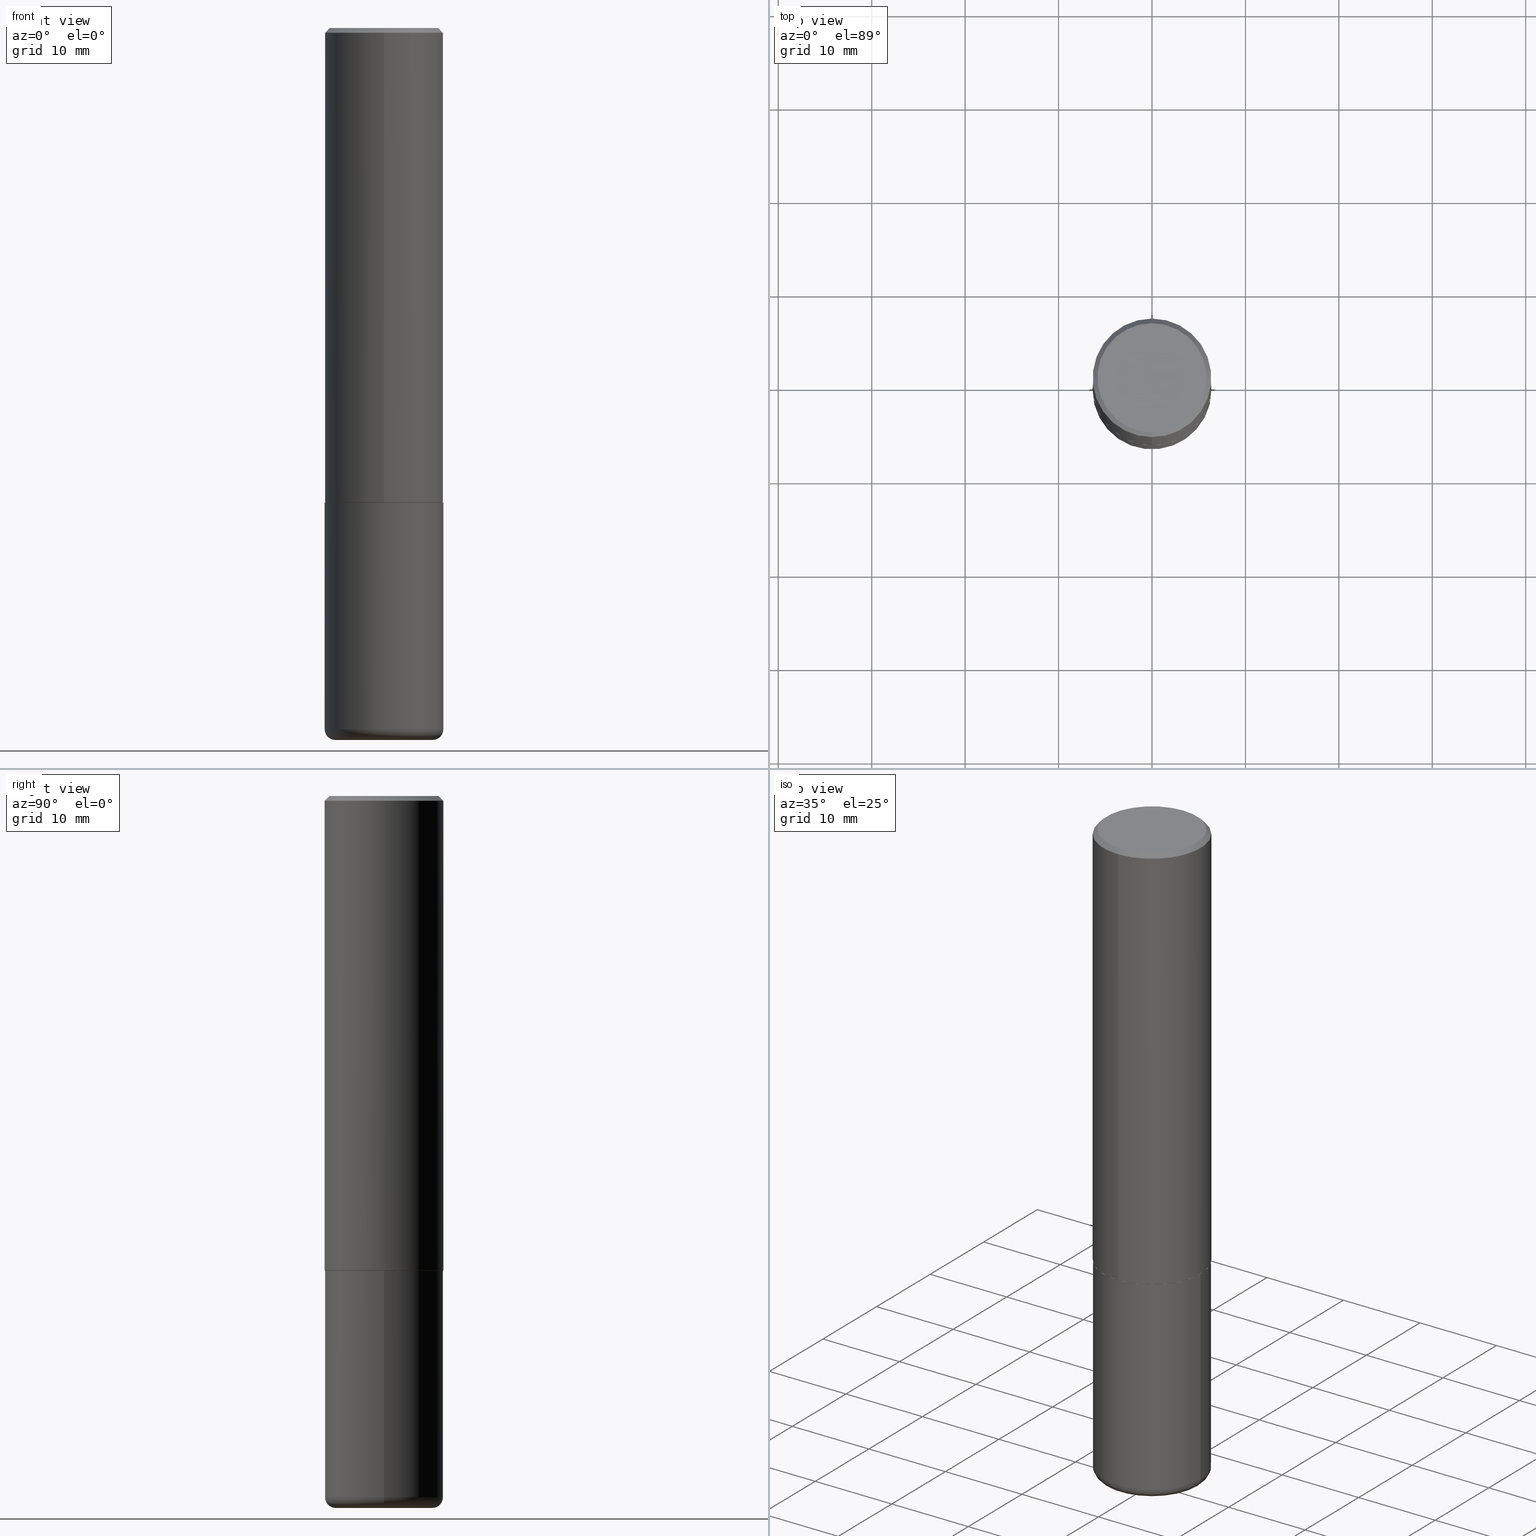
[diagram: canonical four-view strip — front | top / right | iso, engineering-drawing reading convention]
A machine part, canonical four-view strip (front | top / right | iso — engineering-drawing reading convention). The complete STEP part file that produces these views, byte-faithful:
ISO-10303-21;
HEADER;
FILE_DESCRIPTION (( 'STEP AP203' ),
    '1' );
FILE_NAME ('38177.STEP',
    '2024-03-02T17:04:39',
    ( '' ),
    ( '' ),
    'SwSTEP 2.0',
    'SolidWorks 2023',
    '' );
FILE_SCHEMA (( 'CONFIG_CONTROL_DESIGN' ));
ENDSEC;

DATA;
#1 = CARTESIAN_POINT ( 'NONE',  ( 4.890937612370273754E-29, -6.982962677686291954E-15, -2.000000000000000444 ) ) ;
#2 = AXIS2_PLACEMENT_3D ( 'NONE', #112, #409, #234 ) ;
#3 = CALENDAR_DATE ( 2024, 2, 3 ) ;
#4 = ORIENTED_EDGE ( 'NONE', *, *, #392, .T. ) ;
#5 = DATE_AND_TIME ( #223, #238 ) ;
#6 = LINE ( 'NONE', #391, #178 ) ;
#7 = PERSON_AND_ORGANIZATION ( #211, #130 ) ;
#8 = VERTEX_POINT ( 'NONE', #14 ) ;
#9 = CONICAL_SURFACE ( 'NONE', #362, 0.2500000000000000000, 0.7853981633974479459 ) ;
#10 = ADVANCED_FACE ( 'NONE', ( #172 ), #24, .T. ) ;
#11 = CALENDAR_DATE ( 2024, 2, 3 ) ;
#12 = DIRECTION ( 'NONE',  ( -4.937700262164378437E-15, -0.7071067811865208164, 0.7071067811865739960 ) ) ;
#13 = CALENDAR_DATE ( 2024, 2, 3 ) ;
#14 = CARTESIAN_POINT ( 'NONE',  ( 1.675911042644703774E-15, 0.2299999999999998990, -7.518185580527182730E-16 ) ) ;
#15 = CARTESIAN_POINT ( 'NONE',  ( 0.2500000000000000000, -8.728703347107858632E-15, -2.000000000000000444 ) ) ;
#16 = CC_DESIGN_PERSON_AND_ORGANIZATION_ASSIGNMENT ( #402, #254, ( #326 ) ) ;
#17 = AXIS2_PLACEMENT_3D ( 'NONE', #167, #98, #163 ) ;
#18 = FACE_OUTER_BOUND ( 'NONE', #244, .T. ) ;
#19 = ORIENTED_EDGE ( 'NONE', *, *, #418, .F. ) ;
#20 = DIRECTION ( 'NONE',  ( -6.982962677686265922E-15, -1.000000000000000000, 3.489872788065001841E-15 ) ) ;
#21 = CARTESIAN_POINT ( 'NONE',  ( 4.890937612370273754E-29, -6.982962677686291954E-15, -2.000000000000000444 ) ) ;
#22 = EDGE_LOOP ( 'NONE', ( #225, #209 ) ) ;
#23 = APPROVAL ( #226, 'UNSPECIFIED' ) ;
#24 = CONICAL_SURFACE ( 'NONE', #249, 0.2489999999999999991, 0.7853981633974141952 ) ;
#25 = CARTESIAN_POINT ( 'NONE',  ( -1.738757706743831162E-15, -0.2490000000000069658, -1.999999999999999778 ) ) ;
#26 = VECTOR ( 'NONE', #105, 39.37007874015748143 ) ;
#27 = ORIENTED_EDGE ( 'NONE', *, *, #117, .F. ) ;
#28 = CARTESIAN_POINT ( 'NONE',  ( 4.893184102380062236E-29, -6.979745576130006048E-15, -2.000000000000000444 ) ) ;
#29 = VERTEX_POINT ( 'NONE', #287 ) ;
#30 = CIRCLE ( 'NONE', #255, 0.2500000000000002776 ) ;
#31 = DIRECTION ( 'NONE',  ( 1.000000000000000000, -6.982962677686269077E-15, 0.000000000000000000 ) ) ;
#32 = ADVANCED_FACE ( 'NONE', ( #192 ), #280, .T. ) ;
#33 = DIRECTION ( 'NONE',  ( 1.000000000000000000, -6.982962677686266711E-15, 0.000000000000000000 ) ) ;
#34 = APPROVAL ( #43, 'UNSPECIFIED' ) ;
#35 = EDGE_LOOP ( 'NONE', ( #85, #232, #196, #107 ) ) ;
#36 = AXIS2_PLACEMENT_3D ( 'NONE', #338, #179, #20 ) ;
#37 = LOCAL_TIME ( 12, 4, 39.00000000000000000, #166 ) ;
#38 = EDGE_CURVE ( 'NONE', #8, #29, #385, .T. ) ;
#39 = APPROVAL_DATE_TIME ( #320, #95 ) ;
#40 = DIRECTION ( 'NONE',  ( -6.982962677686265922E-15, -1.000000000000000000, 3.278217592397112312E-15 ) ) ;
#41 = DIRECTION ( 'NONE',  ( -6.982962677686265922E-15, -1.000000000000000000, 3.483106191921935554E-15 ) ) ;
#42 = EDGE_CURVE ( 'NONE', #8, #334, #106, .T. ) ;
#43 = APPROVAL_STATUS ( 'not_yet_approved' ) ;
#44 = CARTESIAN_POINT ( 'NONE',  ( 4.893184102380062236E-29, -6.979745576130006048E-15, -2.000000000000000444 ) ) ;
#45 = EDGE_LOOP ( 'NONE', ( #138, #153, #67, #183 ) ) ;
#46 = CIRCLE ( 'NONE', #309, 0.2489999999999999991 ) ;
#47 = ORIENTED_EDGE ( 'NONE', *, *, #188, .T. ) ;
#48 = MANIFOLD_SOLID_BREP ( 'Body-Move/Copy2[1]', #88 ) ;
#49 = EDGE_CURVE ( 'NONE', #150, #58, #46, .T. ) ;
#50 = DIRECTION ( 'NONE',  ( -6.982962677686266711E-15, -1.000000000000000000, 3.489872788065002235E-15 ) ) ;
#51 = CARTESIAN_POINT ( 'NONE',  ( 7.226360322277077836E-29, -1.031732735628149472E-14, -2.955000000000000071 ) ) ;
#52 = EDGE_CURVE ( 'NONE', #61, #221, #224, .T. ) ;
#53 = AXIS2_PLACEMENT_3D ( 'NONE', #365, #72, #298 ) ;
#54 = DIRECTION ( 'NONE',  ( 1.000000000000000000, -6.982962677686266711E-15, 4.876176775795935793E-29 ) ) ;
#55 = MANIFOLD_SOLID_BREP ( 'Body-Move/Copy2[2]', #354 ) ;
#56 = EDGE_CURVE ( 'NONE', #150, #321, #253, .T. ) ;
#57 = CARTESIAN_POINT ( 'NONE',  ( 7.226360322277077836E-29, -1.031732735628149472E-14, -2.955000000000000071 ) ) ;
#58 = VERTEX_POINT ( 'NONE', #370 ) ;
#59 = DIRECTION ( 'NONE',  ( 1.000000000000000000, -6.982962677686266711E-15, 4.883557194083112901E-29 ) ) ;
#60 = AXIS2_PLACEMENT_3D ( 'NONE', #82, #343, #50 ) ;
#61 = VERTEX_POINT ( 'NONE', #132 ) ;
#62 =( NAMED_UNIT ( * ) SI_UNIT ( $, .STERADIAN. ) SOLID_ANGLE_UNIT ( ) );
#63 = PRODUCT ( '38177', '38177', '', ( #393 ) ) ;
#64 = CARTESIAN_POINT ( 'NONE',  ( 4.890737510328871163E-29, -6.976255703341939282E-15, -1.999000000000000110 ) ) ;
#65 = AXIS2_PLACEMENT_3D ( 'NONE', #325, #101, #41 ) ;
#66 = ORIENTED_EDGE ( 'NONE', *, *, #380, .T. ) ;
#67 = ORIENTED_EDGE ( 'NONE', *, *, #146, .T. ) ;
#68 = CIRCLE ( 'NONE', #162, 0.04500000000000040773 ) ;
#69 = DIRECTION ( 'NONE',  ( -6.982962677686265133E-15, -1.000000000000000000, 3.291383124896702687E-15 ) ) ;
#70 = PERSON_AND_ORGANIZATION ( #211, #130 ) ;
#71 = CYLINDRICAL_SURFACE ( 'NONE', #60, 0.2500000000000001110 ) ;
#72 = DIRECTION ( 'NONE',  ( 2.446592051190030557E-29, -3.489872788065002235E-15, -1.000000000000000000 ) ) ;
#73 = EDGE_CURVE ( 'NONE', #58, #270, #6, .T. ) ;
#74 = AXIS2_PLACEMENT_3D ( 'NONE', #273, #306, #86 ) ;
#75 = DIRECTION ( 'NONE',  ( -2.446592051190030557E-29, 3.489872788065002235E-15, 1.000000000000000000 ) ) ;
#76 = CC_DESIGN_PERSON_AND_ORGANIZATION_ASSIGNMENT ( #252, #288, ( #63 ) ) ;
#77 = CARTESIAN_POINT ( 'NONE',  ( 4.893184102380074708E-31, -6.979745576130022269E-17, -0.02000000000000005593 ) ) ;
#78 = EDGE_CURVE ( 'NONE', #270, #321, #108, .T. ) ;
#79 = PLANE ( 'NONE',  #2 ) ;
#80 = ORIENTED_EDGE ( 'NONE', *, *, #49, .T. ) ;
#81 = AXIS2_PLACEMENT_3D ( 'NONE', #405, #407, #54 ) ;
#82 = CARTESIAN_POINT ( 'NONE',  ( 0.000000000000000000, 0.000000000000000000, 0.000000000000000000 ) ) ;
#83 = ORIENTED_EDGE ( 'NONE', *, *, #367, .T. ) ;
#84 = CARTESIAN_POINT ( 'NONE',  ( 0.2500000000000000000, -1.745740669421566678E-15, 1.219044193948983948E-29 ) ) ;
#85 = ORIENTED_EDGE ( 'NONE', *, *, #313, .F. ) ;
#86 = DIRECTION ( 'NONE',  ( -6.982962677686265922E-15, -1.000000000000000000, 3.483106191921935554E-15 ) ) ;
#87 = ORIENTED_EDGE ( 'NONE', *, *, #290, .T. ) ;
#88 = CLOSED_SHELL ( 'NONE', ( #283, #227, #266, #258, #222, #344 ) ) ;
#89 = DIRECTION ( 'NONE',  ( -2.445468806185136597E-29, 3.491481338843145583E-15, 1.000000000000000000 ) ) ;
#90 = DIRECTION ( 'NONE',  ( -6.982962677686265133E-15, -1.000000000000000000, 3.291383124896702687E-15 ) ) ;
#91 = DIRECTION ( 'NONE',  ( -2.446592051190030557E-29, 3.489872788065002235E-15, 1.000000000000000000 ) ) ;
#92 = EDGE_CURVE ( 'NONE', #406, #61, #68, .T. ) ;
#93 = CARTESIAN_POINT ( 'NONE',  ( -1.745740669421519346E-15, -0.2500000000000072164, -1.998999999999999444 ) ) ;
#94 = CIRCLE ( 'NONE', #332, 0.2500000000000000000 ) ;
#95 = APPROVAL ( #100, 'UNSPECIFIED' ) ;
#96 = CARTESIAN_POINT ( 'NONE',  ( -0.2500000000000000000, 1.776356839400250465E-15, -1.229733772563726445E-29 ) ) ;
#97 = ORIENTED_EDGE ( 'NONE', *, *, #146, .F. ) ;
#98 = DIRECTION ( 'NONE',  ( -2.445468806185136597E-29, 3.491481338843145583E-15, 1.000000000000000000 ) ) ;
#99 = EDGE_CURVE ( 'NONE', #29, #8, #404, .T. ) ;
#100 = APPROVAL_STATUS ( 'not_yet_approved' ) ;
#101 = DIRECTION ( 'NONE',  ( -2.446592051190030557E-29, 3.489872788065002235E-15, 1.000000000000000000 ) ) ;
#102 = VECTOR ( 'NONE', #416, 39.37007874015748143 ) ;
#103 = PERSON_AND_ORGANIZATION_ROLE ( 'classification_officer' ) ;
#104 = EDGE_CURVE ( 'NONE', #334, #314, #346, .T. ) ;
#105 = DIRECTION ( 'NONE',  ( -2.446592051190030838E-29, 3.489872788065001841E-15, 1.000000000000000000 ) ) ;
#106 = LINE ( 'NONE', #229, #216 ) ;
#107 = ORIENTED_EDGE ( 'NONE', *, *, #104, .F. ) ;
#108 = CIRCLE ( 'NONE', #237, 0.2500000000000002776 ) ;
#109 =( GEOMETRIC_REPRESENTATION_CONTEXT ( 3 ) GLOBAL_UNCERTAINTY_ASSIGNED_CONTEXT ( ( #118 ) ) GLOBAL_UNIT_ASSIGNED_CONTEXT ( ( #122, #390, #62 ) ) REPRESENTATION_CONTEXT ( 'NONE', 'WORKASPACE' ) );
#110 = PLANE ( 'NONE',  #123 ) ;
#111 = EDGE_LOOP ( 'NONE', ( #125, #199, #133, #206 ) ) ;
#112 = CARTESIAN_POINT ( 'NONE',  ( 1.606081415867840476E-15, 0.2299999999999998990, -7.772446496538342614E-16 ) ) ;
#113 = CARTESIAN_POINT ( 'NONE',  ( 0.000000000000000000, 0.000000000000000000, 0.000000000000000000 ) ) ;
#114 = AXIS2_PLACEMENT_3D ( 'NONE', #51, #374, #152 ) ;
#115 = CARTESIAN_POINT ( 'NONE',  ( 7.336406418555412032E-29, -1.047444401652943951E-14, -3.000000000000000888 ) ) ;
#116 = DIRECTION ( 'NONE',  ( -6.982962677686266711E-15, -1.000000000000000000, 3.489872788065002235E-15 ) ) ;
#117 = EDGE_CURVE ( 'NONE', #321, #314, #256, .T. ) ;
#118 = UNCERTAINTY_MEASURE_WITH_UNIT (LENGTH_MEASURE( 1.000000000000000082E-05 ), #122, 'distance_accuracy_value', 'NONE');
#119 = DIRECTION ( 'NONE',  ( -6.982962677686265133E-15, -1.000000000000000000, 3.291383124896702687E-15 ) ) ;
#120 = ADVANCED_FACE ( 'NONE', ( #368 ), #71, .T. ) ;
#121 = AXIS2_PLACEMENT_3D ( 'NONE', #208, #413, #116 ) ;
#122 =( CONVERSION_BASED_UNIT ( 'INCH', #250 ) LENGTH_UNIT ( ) NAMED_UNIT ( #399 ) );
#123 = AXIS2_PLACEMENT_3D ( 'NONE', #21, #302, #145 ) ;
#124 = APPROVAL_PERSON_ORGANIZATION ( #366, #34, #134 ) ;
#125 = ORIENTED_EDGE ( 'NONE', *, *, #99, .F. ) ;
#126 = DIRECTION ( 'NONE',  ( -2.445468806185136877E-29, 3.491481338843145188E-15, 1.000000000000000000 ) ) ;
#127 = CARTESIAN_POINT ( 'NONE',  ( -0.2049999999999999878, -8.779400962551236573E-15, -3.000000000000000888 ) ) ;
#128 = DIRECTION ( 'NONE',  ( -2.446592051190030557E-29, 3.489872788065002235E-15, 1.000000000000000000 ) ) ;
#129 = AXIS2_PLACEMENT_3D ( 'NONE', #28, #91, #119 ) ;
#130 = ORGANIZATION ( 'UNSPECIFIED', 'UNSPECIFIED', '' ) ;
#131 = PERSON_AND_ORGANIZATION ( #211, #130 ) ;
#132 = CARTESIAN_POINT ( 'NONE',  ( -0.2500000000000002220, -8.540970516881242679E-15, -2.955000000000000071 ) ) ;
#133 = ORIENTED_EDGE ( 'NONE', *, *, #262, .T. ) ;
#134 = APPROVAL_ROLE ( '' ) ;
#135 = DIRECTION ( 'NONE',  ( -6.982962677686265922E-15, -1.000000000000000000, 3.489872788065002235E-15 ) ) ;
#136 = VECTOR ( 'NONE', #341, 39.37007874015748143 ) ;
#137 = PERSON_AND_ORGANIZATION_ROLE ( 'creator' ) ;
#138 = ORIENTED_EDGE ( 'NONE', *, *, #380, .F. ) ;
#139 = ADVANCED_BREP_SHAPE_REPRESENTATION ( '38177', ( #48, #55, #340 ), #109 ) ;
#140 = PERSON_AND_ORGANIZATION ( #211, #130 ) ;
#141 = DIRECTION ( 'NONE',  ( 4.937700262164545676E-15, 0.7071067811865447972, -0.7071067811865502373 ) ) ;
#142 = ORIENTED_EDGE ( 'NONE', *, *, #373, .F. ) ;
#143 = LINE ( 'NONE', #84, #136 ) ;
#144 = AXIS2_PLACEMENT_3D ( 'NONE', #213, #352, #217 ) ;
#145 = DIRECTION ( 'NONE',  ( -1.000000000000000000, 6.982962677686265922E-15, -4.876176775795935793E-29 ) ) ;
#146 = EDGE_CURVE ( 'NONE', #221, #147, #143, .T. ) ;
#147 = VERTEX_POINT ( 'NONE', #15 ) ;
#148 = FACE_OUTER_BOUND ( 'NONE', #198, .T. ) ;
#149 = FACE_OUTER_BOUND ( 'NONE', #22, .T. ) ;
#150 = VERTEX_POINT ( 'NONE', #25 ) ;
#151 = CONICAL_SURFACE ( 'NONE', #197, 0.2489999999999999991, 0.7853981633974141952 ) ;
#152 = DIRECTION ( 'NONE',  ( 1.000000000000000000, -6.982962677686266711E-15, 4.883557194083112901E-29 ) ) ;
#153 = ORIENTED_EDGE ( 'NONE', *, *, #52, .T. ) ;
#154 = DIRECTION ( 'NONE',  ( -2.446592051190030557E-29, 3.489872788065002235E-15, 1.000000000000000000 ) ) ;
#155 = ORIENTED_EDGE ( 'NONE', *, *, #92, .T. ) ;
#156 = EDGE_LOOP ( 'NONE', ( #401, #155, #303, #275 ) ) ;
#157 = VECTOR ( 'NONE', #12, 39.37007874015748854 ) ;
#158 = CARTESIAN_POINT ( 'NONE',  ( 0.000000000000000000, 0.000000000000000000, 0.000000000000000000 ) ) ;
#159 = CARTESIAN_POINT ( 'NONE',  ( 1.753072004642338911E-29, -1.847009668091265282E-14, -3.000000000000000888 ) ) ;
#160 = CARTESIAN_POINT ( 'NONE',  ( 1.745740669421566875E-15, 0.2499999999999999167, -0.02000000000000092676 ) ) ;
#161 = ORIENTED_EDGE ( 'NONE', *, *, #376, .F. ) ;
#162 = AXIS2_PLACEMENT_3D ( 'NONE', #289, #292, #228 ) ;
#163 = DIRECTION ( 'NONE',  ( 1.000000000000000000, -6.982962677686269077E-15, 0.000000000000000000 ) ) ;
#164 = DATE_AND_TIME ( #13, #411 ) ;
#165 = DIRECTION ( 'NONE',  ( -2.446592051190030557E-29, 3.489872788065002235E-15, 1.000000000000000000 ) ) ;
#166 = COORDINATED_UNIVERSAL_TIME_OFFSET ( 5, 0, .BEHIND. ) ;
#167 = CARTESIAN_POINT ( 'NONE',  ( 7.226360322277077836E-29, -1.031732735628149472E-14, -2.955000000000000071 ) ) ;
#168 = TOROIDAL_SURFACE ( 'NONE', #114, 0.2049999999999999878, 0.04500000000000039385 ) ;
#169 = ORIENTED_EDGE ( 'NONE', *, *, #42, .T. ) ;
#170 = ADVANCED_FACE ( 'NONE', ( #205 ), #207, .T. ) ;
#171 = PERSON_AND_ORGANIZATION ( #211, #130 ) ;
#172 = FACE_OUTER_BOUND ( 'NONE', #279, .T. ) ;
#173 = ORIENTED_EDGE ( 'NONE', *, *, #78, .F. ) ;
#174 = FACE_OUTER_BOUND ( 'NONE', #350, .T. ) ;
#175 = DESIGN_CONTEXT ( 'detailed design', #300, 'design' ) ;
#176 = CARTESIAN_POINT ( 'NONE',  ( -0.2500000000000000000, -6.873788177583642873E-15, -2.000000000000000444 ) ) ;
#177 = CC_DESIGN_PERSON_AND_ORGANIZATION_ASSIGNMENT ( #171, #103, ( #281 ) ) ;
#178 = VECTOR ( 'NONE', #327, 39.37007874015748854 ) ;
#179 = DIRECTION ( 'NONE',  ( -2.446592051190030277E-29, 3.489872788065001841E-15, 1.000000000000000000 ) ) ;
#180 = ADVANCED_FACE ( 'NONE', ( #18 ), #9, .T. ) ;
#181 = EDGE_LOOP ( 'NONE', ( #185, #87, #47, #212 ) ) ;
#182 = TOROIDAL_SURFACE ( 'NONE', #355, 0.2049999999999999878, 0.04500000000000039385 ) ;
#183 = ORIENTED_EDGE ( 'NONE', *, *, #296, .F. ) ;
#184 = DIRECTION ( 'NONE',  ( -2.446592051190030838E-29, 3.489872788065001841E-15, 1.000000000000000000 ) ) ;
#185 = ORIENTED_EDGE ( 'NONE', *, *, #92, .F. ) ;
#186 = AXIS2_PLACEMENT_3D ( 'NONE', #1, #89, #33 ) ;
#187 = DATE_TIME_ROLE ( 'creation_date' ) ;
#188 = EDGE_CURVE ( 'NONE', #415, #221, #294, .T. ) ;
#189 = VERTEX_POINT ( 'NONE', #176 ) ;
#190 = CIRCLE ( 'NONE', #395, 0.2500000000000000555 ) ;
#191 = CC_DESIGN_SECURITY_CLASSIFICATION ( #281, ( #317 ) ) ;
#192 = FACE_OUTER_BOUND ( 'NONE', #111, .T. ) ;
#193 = APPLICATION_PROTOCOL_DEFINITION ( 'international standard', 'config_control_design', 1994, #300 ) ;
#194 = DIRECTION ( 'NONE',  ( -6.982962677686265133E-15, -1.000000000000000000, 3.291383124896702687E-15 ) ) ;
#195 = PERSON_AND_ORGANIZATION_ROLE ( 'design_supplier' ) ;
#196 = ORIENTED_EDGE ( 'NONE', *, *, #117, .T. ) ;
#197 = AXIS2_PLACEMENT_3D ( 'NONE', #388, #128, #90 ) ;
#198 = EDGE_LOOP ( 'NONE', ( #4, #66, #412, #97 ) ) ;
#199 = ORIENTED_EDGE ( 'NONE', *, *, #373, .T. ) ;
#200 = PRODUCT_RELATED_PRODUCT_CATEGORY ( 'detail', '', ( #63 ) ) ;
#201 = DIRECTION ( 'NONE',  ( -2.445468806185136597E-29, 3.491481338843145583E-15, 1.000000000000000000 ) ) ;
#202 = FACE_OUTER_BOUND ( 'NONE', #347, .T. ) ;
#203 = CIRCLE ( 'NONE', #186, 0.2500000000000000000 ) ;
#204 = APPROVAL_PERSON_ORGANIZATION ( #70, #95, #220 ) ;
#205 = FACE_OUTER_BOUND ( 'NONE', #35, .T. ) ;
#206 = ORIENTED_EDGE ( 'NONE', *, *, #42, .F. ) ;
#207 = CYLINDRICAL_SURFACE ( 'NONE', #121, 0.2500000000000001110 ) ;
#208 = CARTESIAN_POINT ( 'NONE',  ( 0.000000000000000000, 0.000000000000000000, 0.000000000000000000 ) ) ;
#209 = ORIENTED_EDGE ( 'NONE', *, *, #99, .T. ) ;
#210 = AXIS2_PLACEMENT_3D ( 'NONE', #360, #394, #135 ) ;
#211 = PERSON ( 'UNSPECIFIED', 'UNSPECIFIED', 'UNSPECIFIED', ('UNSPECIFIED'), ('UNSPECIFIED'), ('UNSPECIFIED') ) ;
#212 = ORIENTED_EDGE ( 'NONE', *, *, #52, .F. ) ;
#213 = CARTESIAN_POINT ( 'NONE',  ( 7.336406418555412032E-29, -1.047444401652943951E-14, -3.000000000000000888 ) ) ;
#214 = CC_DESIGN_PERSON_AND_ORGANIZATION_ASSIGNMENT ( #140, #137, ( #317 ) ) ;
#215 = CARTESIAN_POINT ( 'NONE',  ( -1.715124499442882299E-15, -0.2500000000000000555, -0.01999999999999918510 ) ) ;
#216 = VECTOR ( 'NONE', #141, 39.37007874015748143 ) ;
#217 = DIRECTION ( 'NONE',  ( 1.000000000000000000, -6.982962677686261977E-15, 0.000000000000000000 ) ) ;
#218 = SHAPE_DEFINITION_REPRESENTATION ( #353, #139 ) ;
#219 = CC_DESIGN_DATE_AND_TIME_ASSIGNMENT ( #164, #187, ( #326 ) ) ;
#220 = APPROVAL_ROLE ( '' ) ;
#221 = VERTEX_POINT ( 'NONE', #301 ) ;
#222 = ADVANCED_FACE ( 'NONE', ( #304 ), #182, .T. ) ;
#223 = CALENDAR_DATE ( 2024, 2, 3 ) ;
#224 = CIRCLE ( 'NONE', #17, 0.2500000000000000555 ) ;
#225 = ORIENTED_EDGE ( 'NONE', *, *, #38, .T. ) ;
#226 = APPROVAL_STATUS ( 'not_yet_approved' ) ;
#227 = ADVANCED_FACE ( 'NONE', ( #382 ), #168, .T. ) ;
#228 = DIRECTION ( 'NONE',  ( -1.000000000000000000, 7.105427357600990815E-15, 0.000000000000000000 ) ) ;
#229 = CARTESIAN_POINT ( 'NONE',  ( 1.745740669421566875E-15, 0.2499999999999999167, -0.02000000000000092676 ) ) ;
#230 = DIRECTION ( 'NONE',  ( -2.446592051190030557E-29, 3.489872788065002235E-15, 1.000000000000000000 ) ) ;
#231 = AXIS2_PLACEMENT_3D ( 'NONE', #159, #247, #284 ) ;
#232 = ORIENTED_EDGE ( 'NONE', *, *, #78, .T. ) ;
#233 = DIRECTION ( 'NONE',  ( 1.000000000000000000, -6.982962677686247778E-15, 0.000000000000000000 ) ) ;
#234 = DIRECTION ( 'NONE',  ( 6.982962677686265922E-15, 1.000000000000000000, -3.489872788065001841E-15 ) ) ;
#235 = ORIENTED_EDGE ( 'NONE', *, *, #73, .F. ) ;
#236 = DIRECTION ( 'NONE',  ( -2.445468806185136597E-29, 3.491481338843145583E-15, 1.000000000000000000 ) ) ;
#237 = AXIS2_PLACEMENT_3D ( 'NONE', #263, #403, #40 ) ;
#238 = LOCAL_TIME ( 12, 4, 39.00000000000000000, #261 ) ;
#239 = DIRECTION ( 'NONE',  ( 1.000000000000000000, -6.982962677686261977E-15, 0.000000000000000000 ) ) ;
#240 = ORIENTED_EDGE ( 'NONE', *, *, #56, .F. ) ;
#241 = DIRECTION ( 'NONE',  ( 2.446592051190030557E-29, -3.489872788065002235E-15, -1.000000000000000000 ) ) ;
#242 = ORIENTED_EDGE ( 'NONE', *, *, #56, .T. ) ;
#243 = FACE_OUTER_BOUND ( 'NONE', #335, .T. ) ;
#244 = EDGE_LOOP ( 'NONE', ( #142, #299, #169, #381 ) ) ;
#245 = AXIS2_PLACEMENT_3D ( 'NONE', #372, #264, #233 ) ;
#246 = APPLICATION_PROTOCOL_DEFINITION ( 'international standard', 'config_control_design', 1994, #274 ) ;
#247 = DIRECTION ( 'NONE',  ( 2.438088387897960049E-29, -3.491481338843145188E-15, -1.000000000000000000 ) ) ;
#248 = LINE ( 'NONE', #389, #322 ) ;
#249 = AXIS2_PLACEMENT_3D ( 'NONE', #259, #230, #194 ) ;
#250 = LENGTH_MEASURE_WITH_UNIT ( LENGTH_MEASURE( 0.02539999999999999897 ), #356 );
#251 = EDGE_LOOP ( 'NONE', ( #260, #333, #336, #27 ) ) ;
#252 = PERSON_AND_ORGANIZATION ( #211, #130 ) ;
#253 = LINE ( 'NONE', #295, #157 ) ;
#254 = PERSON_AND_ORGANIZATION_ROLE ( 'creator' ) ;
#255 = AXIS2_PLACEMENT_3D ( 'NONE', #64, #154, #351 ) ;
#256 = LINE ( 'NONE', #398, #26 ) ;
#257 = DATE_TIME_ROLE ( 'classification_date' ) ;
#258 = ADVANCED_FACE ( 'NONE', ( #337 ), #308, .T. ) ;
#259 = CARTESIAN_POINT ( 'NONE',  ( 4.893184102380062236E-29, -6.979745576130006048E-15, -2.000000000000000444 ) ) ;
#260 = ORIENTED_EDGE ( 'NONE', *, *, #418, .T. ) ;
#261 = COORDINATED_UNIVERSAL_TIME_OFFSET ( 5, 0, .BEHIND. ) ;
#262 = EDGE_CURVE ( 'NONE', #314, #334, #410, .T. ) ;
#263 = CARTESIAN_POINT ( 'NONE',  ( 4.890737510328871163E-29, -6.976255703341939282E-15, -1.999000000000000110 ) ) ;
#264 = DIRECTION ( 'NONE',  ( -6.982962677686266711E-15, -1.000000000000000000, 3.491481338843145583E-15 ) ) ;
#265 = AXIS2_PLACEMENT_3D ( 'NONE', #113, #236, #379 ) ;
#266 = ADVANCED_FACE ( 'NONE', ( #174 ), #110, .F. ) ;
#267 = LOCAL_TIME ( 12, 4, 39.00000000000000000, #291 ) ;
#268 = CARTESIAN_POINT ( 'NONE',  ( 1.776356839400276497E-15, 0.2499999999999933109, -1.999000000000000998 ) ) ;
#269 = CYLINDRICAL_SURFACE ( 'NONE', #265, 0.2500000000000000000 ) ;
#270 = VERTEX_POINT ( 'NONE', #268 ) ;
#271 = ADVANCED_FACE ( 'NONE', ( #149 ), #79, .F. ) ;
#272 = DIRECTION ( 'NONE',  ( 6.982962677686265922E-15, 1.000000000000000000, -3.483106191921935554E-15 ) ) ;
#273 = CARTESIAN_POINT ( 'NONE',  ( 4.893184102380074708E-31, -6.979745576130022269E-17, -0.02000000000000005593 ) ) ;
#274 = APPLICATION_CONTEXT ( 'configuration controlled 3d designs of mechanical parts and assemblies' ) ;
#275 = ORIENTED_EDGE ( 'NONE', *, *, #188, .F. ) ;
#276 = DIRECTION ( 'NONE',  ( -2.445468806185136597E-29, 3.491481338843145583E-15, 1.000000000000000000 ) ) ;
#277 = ADVANCED_FACE ( 'NONE', ( #202 ), #408, .F. ) ;
#278 = ORIENTED_EDGE ( 'NONE', *, *, #73, .T. ) ;
#279 = EDGE_LOOP ( 'NONE', ( #235, #83, #242, #173 ) ) ;
#280 = CONICAL_SURFACE ( 'NONE', #53, 0.2500000000000000000, 0.7853981633974479459 ) ;
#281 = SECURITY_CLASSIFICATION ( '', '', #397 ) ;
#282 = DIRECTION ( 'NONE',  ( 0.000000000000000000, 0.000000000000000000, 1.000000000000000000 ) ) ;
#283 = ADVANCED_FACE ( 'NONE', ( #148 ), #269, .T. ) ;
#284 = DIRECTION ( 'NONE',  ( -1.000000000000000000, 6.982962677686265922E-15, -4.876176775795935793E-29 ) ) ;
#285 = LINE ( 'NONE', #96, #377 ) ;
#286 = AXIS2_PLACEMENT_3D ( 'NONE', #371, #165, #329 ) ;
#287 = CARTESIAN_POINT ( 'NONE',  ( -1.646519519465166770E-15, -0.2299999999999998990, 8.535229244571821279E-16 ) ) ;
#288 = PERSON_AND_ORGANIZATION_ROLE ( 'design_owner' ) ;
#289 = CARTESIAN_POINT ( 'NONE',  ( -0.2049999999999999878, -8.860714747973288835E-15, -2.955000000000000071 ) ) ;
#290 = EDGE_CURVE ( 'NONE', #406, #415, #361, .T. ) ;
#291 = COORDINATED_UNIVERSAL_TIME_OFFSET ( 5, 0, .BEHIND. ) ;
#292 = DIRECTION ( 'NONE',  ( 7.105427357601001859E-15, 1.000000000000000000, -3.491481338843145583E-15 ) ) ;
#293 = DATE_AND_TIME ( #3, #364 ) ;
#294 = CIRCLE ( 'NONE', #245, 0.04500000000000040773 ) ;
#295 = CARTESIAN_POINT ( 'NONE',  ( -1.738757706743831162E-15, -0.2490000000000069658, -1.999999999999999778 ) ) ;
#296 = EDGE_CURVE ( 'NONE', #189, #147, #94, .T. ) ;
#297 = DATE_AND_TIME ( #11, #37 ) ;
#298 = DIRECTION ( 'NONE',  ( 6.982962677686265922E-15, 1.000000000000000000, -3.483106191921935554E-15 ) ) ;
#299 = ORIENTED_EDGE ( 'NONE', *, *, #38, .F. ) ;
#300 = APPLICATION_CONTEXT ( 'configuration controlled 3d designs of mechanical parts and assemblies' ) ;
#301 = CARTESIAN_POINT ( 'NONE',  ( 0.2500000000000002220, -1.206306802570306455E-14, -2.955000000000000071 ) ) ;
#302 = DIRECTION ( 'NONE',  ( 2.438088387897960049E-29, -3.491481338843145188E-15, -1.000000000000000000 ) ) ;
#303 = ORIENTED_EDGE ( 'NONE', *, *, #392, .F. ) ;
#304 = FACE_OUTER_BOUND ( 'NONE', #181, .T. ) ;
#305 = ADVANCED_FACE ( 'NONE', ( #311 ), #151, .T. ) ;
#306 = DIRECTION ( 'NONE',  ( -2.446592051190030557E-29, 3.489872788065002235E-15, 1.000000000000000000 ) ) ;
#307 = EDGE_LOOP ( 'NONE', ( #80, #278, #19, #240 ) ) ;
#308 = CYLINDRICAL_SURFACE ( 'NONE', #81, 0.2500000000000000000 ) ;
#309 = AXIS2_PLACEMENT_3D ( 'NONE', #44, #75, #69 ) ;
#310 = CC_DESIGN_APPROVAL ( #95, ( #317 ) ) ;
#311 = FACE_OUTER_BOUND ( 'NONE', #307, .T. ) ;
#312 = CARTESIAN_POINT ( 'NONE',  ( -1.715124499442882299E-15, -0.2500000000000000555, -0.01999999999999918510 ) ) ;
#313 = EDGE_CURVE ( 'NONE', #270, #334, #248, .T. ) ;
#314 = VERTEX_POINT ( 'NONE', #312 ) ;
#315 = CARTESIAN_POINT ( 'NONE',  ( 7.226360322277077836E-29, -1.031732735628149472E-14, -2.955000000000000071 ) ) ;
#316 = CIRCLE ( 'NONE', #129, 0.2489999999999999991 ) ;
#317 = PRODUCT_DEFINITION_FORMATION_WITH_SPECIFIED_SOURCE ( 'ANY', '', #63, .NOT_KNOWN. ) ;
#318 = DIRECTION ( 'NONE',  ( 1.000000000000000000, -6.982962677686266711E-15, 0.000000000000000000 ) ) ;
#319 = LINE ( 'NONE', #215, #102 ) ;
#320 = DATE_AND_TIME ( #323, #267 ) ;
#321 = VERTEX_POINT ( 'NONE', #93 ) ;
#322 = VECTOR ( 'NONE', #184, 39.37007874015748143 ) ;
#323 = CALENDAR_DATE ( 2024, 2, 3 ) ;
#324 = CC_DESIGN_APPROVAL ( #23, ( #281 ) ) ;
#325 = CARTESIAN_POINT ( 'NONE',  ( 4.893184102380074708E-31, -6.979745576130022269E-17, -0.02000000000000005593 ) ) ;
#326 = PRODUCT_DEFINITION ( 'UNKNOWN', '', #317, #175 ) ;
#327 = DIRECTION ( 'NONE',  ( 5.024295867787889629E-15, 0.7071067811865257013, 0.7071067811865691111 ) ) ;
#328 = DIRECTION ( 'NONE',  ( 1.000000000000000000, 0.000000000000000000, 0.000000000000000000 ) ) ;
#329 = DIRECTION ( 'NONE',  ( -6.982962677686265922E-15, -1.000000000000000000, 3.489872788065002235E-15 ) ) ;
#330 = ORIENTED_EDGE ( 'NONE', *, *, #367, .F. ) ;
#331 = APPROVAL_ROLE ( '' ) ;
#332 = AXIS2_PLACEMENT_3D ( 'NONE', #387, #276, #318 ) ;
#333 = ORIENTED_EDGE ( 'NONE', *, *, #313, .T. ) ;
#334 = VERTEX_POINT ( 'NONE', #160 ) ;
#335 = EDGE_LOOP ( 'NONE', ( #161, #342 ) ) ;
#336 = ORIENTED_EDGE ( 'NONE', *, *, #262, .F. ) ;
#337 = FACE_OUTER_BOUND ( 'NONE', #45, .T. ) ;
#338 = CARTESIAN_POINT ( 'NONE',  ( 4.893184102380062236E-29, -6.979745576130006048E-15, -2.000000000000000444 ) ) ;
#339 = CIRCLE ( 'NONE', #144, 0.2049999999999999878 ) ;
#340 = AXIS2_PLACEMENT_3D ( 'NONE', #158, #282, #328 ) ;
#341 = DIRECTION ( 'NONE',  ( -2.445468806185136877E-29, 3.491481338843145188E-15, 1.000000000000000000 ) ) ;
#342 = ORIENTED_EDGE ( 'NONE', *, *, #290, .F. ) ;
#343 = DIRECTION ( 'NONE',  ( -2.446592051190030557E-29, 3.489872788065002235E-15, 1.000000000000000000 ) ) ;
#344 = ADVANCED_FACE ( 'NONE', ( #243 ), #414, .T. ) ;
#345 = CARTESIAN_POINT ( 'NONE',  ( 0.2049999999999999878, -1.190595136545512292E-14, -3.000000000000000888 ) ) ;
#346 = CIRCLE ( 'NONE', #65, 0.2500000000000000000 ) ;
#347 = EDGE_LOOP ( 'NONE', ( #383, #330 ) ) ;
#348 = APPROVAL_PERSON_ORGANIZATION ( #131, #23, #331 ) ;
#349 = CC_DESIGN_PERSON_AND_ORGANIZATION_ASSIGNMENT ( #7, #195, ( #317 ) ) ;
#350 = EDGE_LOOP ( 'NONE', ( #357, #378 ) ) ;
#351 = DIRECTION ( 'NONE',  ( -6.982962677686265922E-15, -1.000000000000000000, 3.278217592397112312E-15 ) ) ;
#352 = DIRECTION ( 'NONE',  ( -2.445468806185136597E-29, 3.491481338843145583E-15, 1.000000000000000000 ) ) ;
#353 = PRODUCT_DEFINITION_SHAPE ( 'NONE', 'NONE',  #326 ) ;
#354 = CLOSED_SHELL ( 'NONE', ( #305, #120, #32, #180, #170, #10, #277, #271 ) ) ;
#355 = AXIS2_PLACEMENT_3D ( 'NONE', #57, #201, #59 ) ;
#356 =( LENGTH_UNIT ( ) NAMED_UNIT ( * ) SI_UNIT ( $, .METRE. ) );
#357 = ORIENTED_EDGE ( 'NONE', *, *, #396, .T. ) ;
#358 = CC_DESIGN_DATE_AND_TIME_ASSIGNMENT ( #293, #257, ( #281 ) ) ;
#359 = APPROVAL_DATE_TIME ( #297, #34 ) ;
#360 = CARTESIAN_POINT ( 'NONE',  ( -1.244145472082398885E-45, 1.774676503711654950E-31, 5.085218320223195210E-17 ) ) ;
#361 = CIRCLE ( 'NONE', #417, 0.2049999999999999878 ) ;
#362 = AXIS2_PLACEMENT_3D ( 'NONE', #77, #241, #272 ) ;
#363 = COORDINATED_UNIVERSAL_TIME_OFFSET ( 5, 0, .BEHIND. ) ;
#364 = LOCAL_TIME ( 12, 4, 39.00000000000000000, #369 ) ;
#365 = CARTESIAN_POINT ( 'NONE',  ( 4.893184102380074708E-31, -6.979745576130022269E-17, -0.02000000000000005593 ) ) ;
#366 = PERSON_AND_ORGANIZATION ( #211, #130 ) ;
#367 = EDGE_CURVE ( 'NONE', #58, #150, #316, .T. ) ;
#368 = FACE_OUTER_BOUND ( 'NONE', #251, .T. ) ;
#369 = COORDINATED_UNIVERSAL_TIME_OFFSET ( 5, 0, .BEHIND. ) ;
#370 = CARTESIAN_POINT ( 'NONE',  ( 1.772804125721499264E-15, 0.2489999999999930325, -2.000000000000001332 ) ) ;
#371 = CARTESIAN_POINT ( 'NONE',  ( -1.244145472082398885E-45, 1.774676503711654950E-31, 5.085218320223195210E-17 ) ) ;
#372 = CARTESIAN_POINT ( 'NONE',  ( 0.2049999999999999878, -1.174883470520718129E-14, -2.955000000000000071 ) ) ;
#373 = EDGE_CURVE ( 'NONE', #29, #314, #319, .T. ) ;
#374 = DIRECTION ( 'NONE',  ( -2.445468806185136597E-29, 3.491481338843145583E-15, 1.000000000000000000 ) ) ;
#375 = DIRECTION ( 'NONE',  ( -2.445468806185136597E-29, 3.491481338843145583E-15, 1.000000000000000000 ) ) ;
#376 = EDGE_CURVE ( 'NONE', #415, #406, #339, .T. ) ;
#377 = VECTOR ( 'NONE', #126, 39.37007874015748143 ) ;
#378 = ORIENTED_EDGE ( 'NONE', *, *, #296, .T. ) ;
#379 = DIRECTION ( 'NONE',  ( 1.000000000000000000, -6.982962677686266711E-15, 4.876176775795935793E-29 ) ) ;
#380 = EDGE_CURVE ( 'NONE', #61, #189, #285, .T. ) ;
#381 = ORIENTED_EDGE ( 'NONE', *, *, #104, .T. ) ;
#382 = FACE_OUTER_BOUND ( 'NONE', #156, .T. ) ;
#383 = ORIENTED_EDGE ( 'NONE', *, *, #49, .F. ) ;
#384 = DIRECTION ( 'NONE',  ( -2.445468806185136597E-29, 3.491481338843145583E-15, 1.000000000000000000 ) ) ;
#385 = CIRCLE ( 'NONE', #286, 0.2299999999999998990 ) ;
#386 = CC_DESIGN_APPROVAL ( #34, ( #326 ) ) ;
#387 = CARTESIAN_POINT ( 'NONE',  ( 4.890937612370273754E-29, -6.982962677686291954E-15, -2.000000000000000444 ) ) ;
#388 = CARTESIAN_POINT ( 'NONE',  ( 4.893184102380062236E-29, -6.979745576130006048E-15, -2.000000000000000444 ) ) ;
#389 = CARTESIAN_POINT ( 'NONE',  ( 1.776356839400251254E-15, 0.2500000000000001110, -8.724681970162509532E-16 ) ) ;
#390 =( NAMED_UNIT ( * ) PLANE_ANGLE_UNIT ( ) SI_UNIT ( $, .RADIAN. ) );
#391 = CARTESIAN_POINT ( 'NONE',  ( 1.769251412042698169E-15, 0.2489999999999930325, -2.000000000000001332 ) ) ;
#392 = EDGE_CURVE ( 'NONE', #221, #61, #190, .T. ) ;
#393 = MECHANICAL_CONTEXT ( 'NONE', #274, 'mechanical' ) ;
#394 = DIRECTION ( 'NONE',  ( -2.446592051190030557E-29, 3.489872788065002235E-15, 1.000000000000000000 ) ) ;
#395 = AXIS2_PLACEMENT_3D ( 'NONE', #315, #384, #31 ) ;
#396 = EDGE_CURVE ( 'NONE', #147, #189, #203, .T. ) ;
#397 = SECURITY_CLASSIFICATION_LEVEL ( 'unclassified' ) ;
#398 = CARTESIAN_POINT ( 'NONE',  ( -1.745740669421567467E-15, -0.2500000000000001110, 8.724681970162509532E-16 ) ) ;
#399 = DIMENSIONAL_EXPONENTS ( 1.000000000000000000, 0.000000000000000000, 0.000000000000000000, 0.000000000000000000, 0.000000000000000000, 0.000000000000000000, 0.000000000000000000 ) ;
#400 = APPROVAL_DATE_TIME ( #5, #23 ) ;
#401 = ORIENTED_EDGE ( 'NONE', *, *, #376, .T. ) ;
#402 = PERSON_AND_ORGANIZATION ( #211, #130 ) ;
#403 = DIRECTION ( 'NONE',  ( -2.446592051190030557E-29, 3.489872788065002235E-15, 1.000000000000000000 ) ) ;
#404 = CIRCLE ( 'NONE', #210, 0.2299999999999998990 ) ;
#405 = CARTESIAN_POINT ( 'NONE',  ( 0.000000000000000000, 0.000000000000000000, 0.000000000000000000 ) ) ;
#406 = VERTEX_POINT ( 'NONE', #127 ) ;
#407 = DIRECTION ( 'NONE',  ( -2.445468806185136597E-29, 3.491481338843145583E-15, 1.000000000000000000 ) ) ;
#408 = PLANE ( 'NONE',  #36 ) ;
#409 = DIRECTION ( 'NONE',  ( 2.446592051190030277E-29, -3.489872788065001841E-15, -1.000000000000000000 ) ) ;
#410 = CIRCLE ( 'NONE', #74, 0.2500000000000000000 ) ;
#411 = LOCAL_TIME ( 12, 4, 39.00000000000000000, #363 ) ;
#412 = ORIENTED_EDGE ( 'NONE', *, *, #396, .F. ) ;
#413 = DIRECTION ( 'NONE',  ( -2.446592051190030557E-29, 3.489872788065002235E-15, 1.000000000000000000 ) ) ;
#414 = PLANE ( 'NONE',  #231 ) ;
#415 = VERTEX_POINT ( 'NONE', #345 ) ;
#416 = DIRECTION ( 'NONE',  ( -4.851104656540961908E-15, -0.7071067811865496822, -0.7071067811865453523 ) ) ;
#417 = AXIS2_PLACEMENT_3D ( 'NONE', #115, #375, #239 ) ;
#418 = EDGE_CURVE ( 'NONE', #321, #270, #30, .T. ) ;
ENDSEC;
END-ISO-10303-21;
